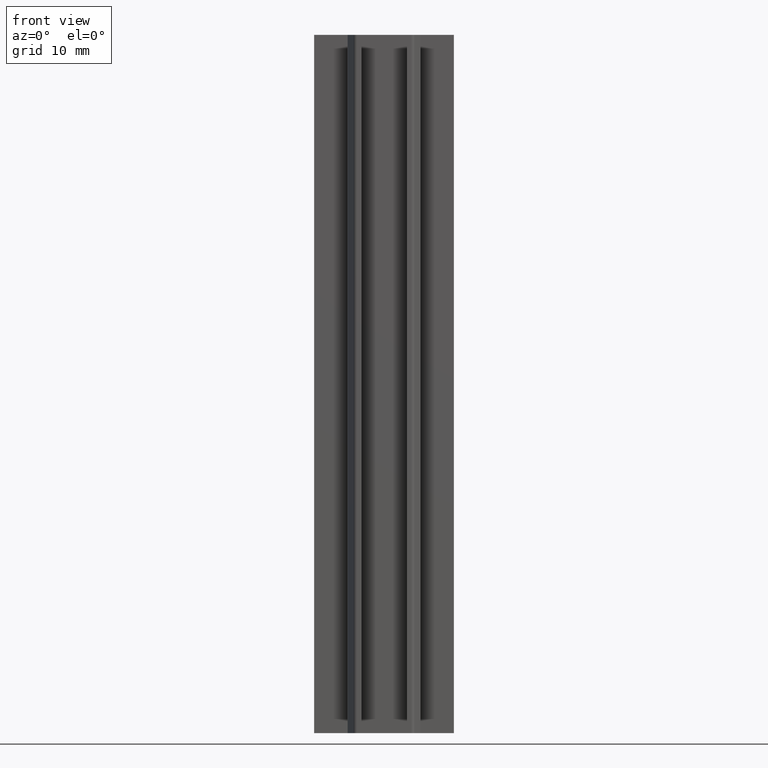
[diagram: clean part render]
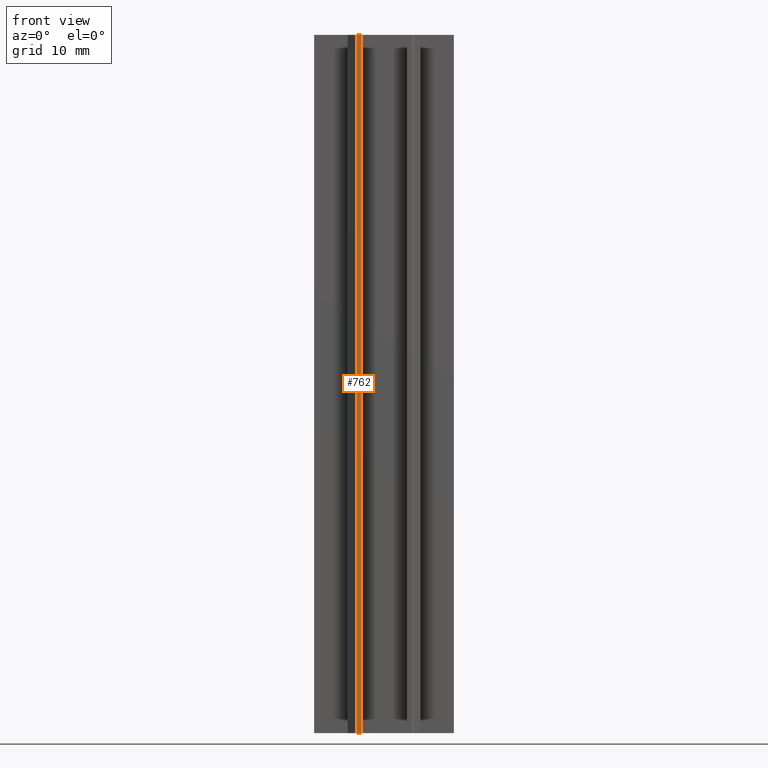
[diagram: same view with one face highlighted and labeled with its STEP entity id]
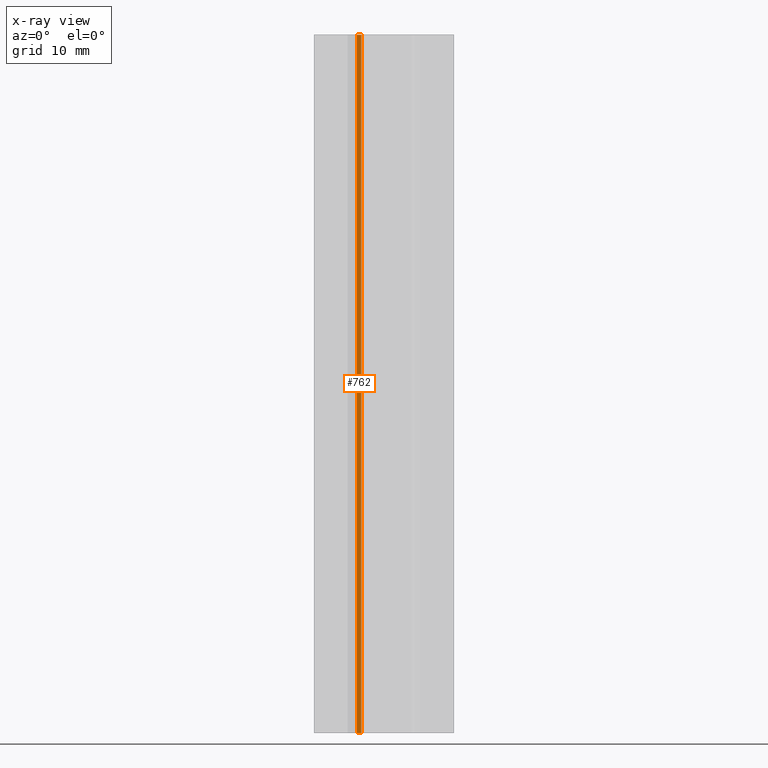
[diagram: x-ray of the same camera — body ghosted, the highlighted face saturated]
A machine part, front view. The second image highlights one B-rep face of the part: STEP entity #762.
The next image is the same camera in x-ray: the body ghosted, the highlighted face saturated — about 0% of this face is hidden behind the body in this view.
In plain terms, the highlighted planar face has unit normal (0, -1, 0).
Its self-contained STEP definition (entity closure, byte-faithful):
#704=CARTESIAN_POINT('',(-13.911483519230842,-6.999999999972033,0.0));
#705=VERTEX_POINT('',#704);
#713=CARTESIAN_POINT('',(-13.911483519230842,-6.999999999972033,100.0));
#714=VERTEX_POINT('',#713);
#715=CARTESIAN_POINT('',(-13.911483519230842,-6.999999999972033,0.0));
#716=DIRECTION('',(0.0,0.0,1.0));
#717=VECTOR('',#716,100.0);
#718=LINE('',#715,#717);
#719=EDGE_CURVE('',#705,#714,#718,.T.);
#732=CARTESIAN_POINT('',(-13.911483519230842,-6.999999999972033,0.0));
#733=DIRECTION('',(0.0,-1.0,0.0));
#734=DIRECTION('',(1.0,0.0,0.0));
#735=AXIS2_PLACEMENT_3D('',#732,#733,#734);
#736=PLANE('',#735);
#737=CARTESIAN_POINT('',(-13.249999999947022,-6.999999999972033,0.0));
#738=VERTEX_POINT('',#737);
#739=CARTESIAN_POINT('',(-13.911483519230913,-6.999999999972033,0.0));
#740=DIRECTION('',(1.0,0.0,0.0));
#741=VECTOR('',#740,0.661483519283891);
#742=LINE('',#739,#741);
#743=EDGE_CURVE('',#705,#738,#742,.T.);
#744=ORIENTED_EDGE('',*,*,#743,.T.);
#745=CARTESIAN_POINT('',(-13.249999999947022,-6.999999999972033,100.0));
#746=VERTEX_POINT('',#745);
#747=CARTESIAN_POINT('',(-13.249999999947022,-6.999999999972033,0.0));
#748=DIRECTION('',(0.0,0.0,1.0));
#749=VECTOR('',#748,100.0);
#750=LINE('',#747,#749);
#751=EDGE_CURVE('',#738,#746,#750,.T.);
#752=ORIENTED_EDGE('',*,*,#751,.T.);
#753=CARTESIAN_POINT('',(-13.911483519230913,-6.999999999972033,100.0));
#754=DIRECTION('',(1.0,0.0,0.0));
#755=VECTOR('',#754,0.661483519283891);
#756=LINE('',#753,#755);
#757=EDGE_CURVE('',#714,#746,#756,.T.);
#758=ORIENTED_EDGE('',*,*,#757,.F.);
#759=ORIENTED_EDGE('',*,*,#719,.F.);
#760=EDGE_LOOP('',(#744,#752,#758,#759));
#761=FACE_OUTER_BOUND('',#760,.T.);
#762=ADVANCED_FACE('',(#761),#736,.T.);